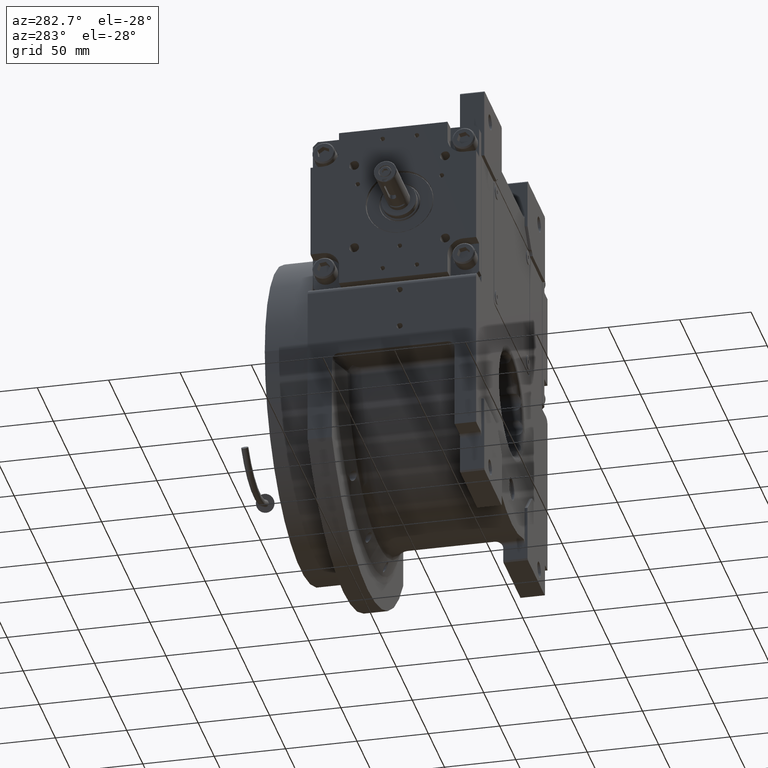
[diagram: clean part render]
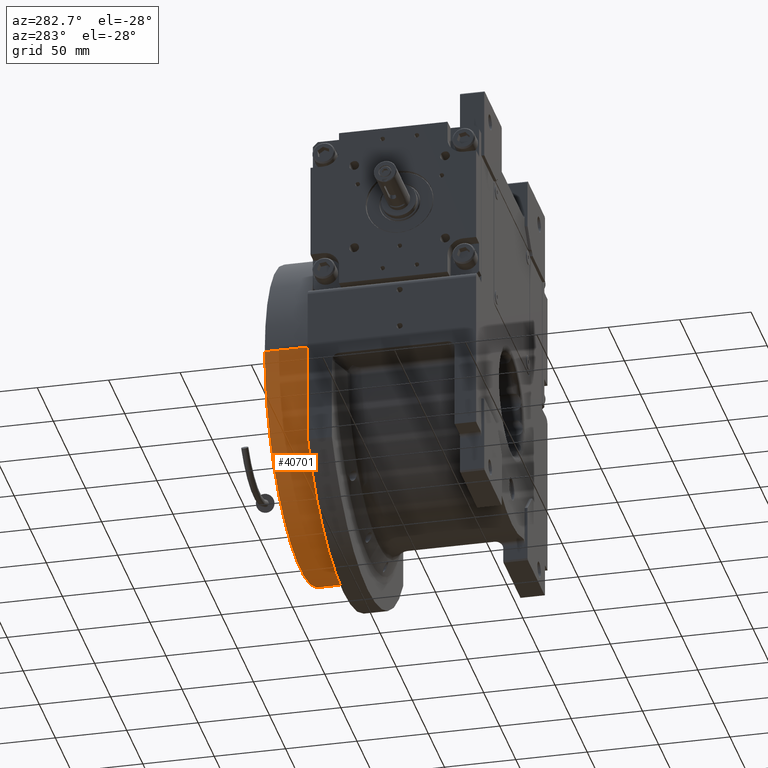
[diagram: same view with one face highlighted and labeled with its STEP entity id]
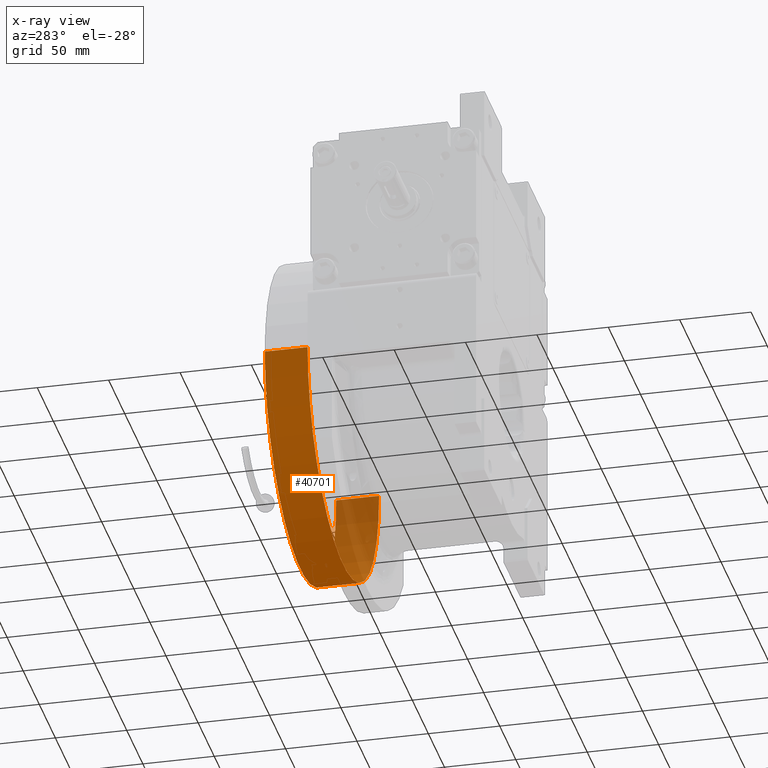
[diagram: x-ray of the same camera — body ghosted, the highlighted face saturated]
A machine part, auxiliary view. The second image highlights one B-rep face of the part: STEP entity #40701.
The next image is the same camera in x-ray: the body ghosted, the highlighted face saturated — about 23% of this face is hidden behind the body in this view.
In plain terms, the highlighted cylindrical surface (partial cylindrical patch) has radius 111 mm, axis along (0, -1, 0).
Its self-contained STEP definition (entity closure, byte-faithful):
#86 = EDGE_LOOP ( 'NONE', ( #34624, #9485, #25741, #30491 ) ) ;
#405 = CARTESIAN_POINT ( 'NONE',  ( 0.000000000000000000, 0.000000000000000000, 0.000000000000000000 ) ) ;
#932 = EDGE_CURVE ( 'NONE', #59314, #13287, #11685, .T. ) ;
#3292 = AXIS2_PLACEMENT_3D ( 'NONE', #405, #58411, #53814 ) ;
#7917 = CIRCLE ( 'NONE', #59509, 111.0000000000000000 ) ;
#9485 = ORIENTED_EDGE ( 'NONE', *, *, #38183, .F. ) ;
#9965 = VERTEX_POINT ( 'NONE', #17837 ) ;
#11685 = LINE ( 'NONE', #38039, #33365 ) ;
#12570 = DIRECTION ( 'NONE',  ( 1.000000000000000000, 0.000000000000000000, 0.000000000000000000 ) ) ;
#13287 = VERTEX_POINT ( 'NONE', #57015 ) ;
#17837 = CARTESIAN_POINT ( 'NONE',  ( 111.0000000000000000, 0.000000000000000000, 0.000000000000000000 ) ) ;
#20684 = EDGE_CURVE ( 'NONE', #9965, #59314, #33570, .T. ) ;
#21709 = FACE_OUTER_BOUND ( 'NONE', #86, .T. ) ;
#23774 = DIRECTION ( 'NONE',  ( 0.000000000000000000, 0.000000000000000000, 1.000000000000000000 ) ) ;
#25741 = ORIENTED_EDGE ( 'NONE', *, *, #26248, .F. ) ;
#26248 = EDGE_CURVE ( 'NONE', #9965, #61183, #38895, .T. ) ;
#26475 = DIRECTION ( 'NONE',  ( 0.000000000000000000, 0.000000000000000000, 1.000000000000000000 ) ) ;
#27914 = CARTESIAN_POINT ( 'NONE',  ( 111.0000000000000000, 0.000000000000000000, 30.00000000000000000 ) ) ;
#29064 = DIRECTION ( 'NONE',  ( 0.000000000000000000, 0.000000000000000000, -1.000000000000000000 ) ) ;
#29380 = CARTESIAN_POINT ( 'NONE',  ( 0.000000000000000000, 0.000000000000000000, 30.00000000000000000 ) ) ;
#30491 = ORIENTED_EDGE ( 'NONE', *, *, #20684, .T. ) ;
#33365 = VECTOR ( 'NONE', #26475, 1000.000000000000000 ) ;
#33522 = CARTESIAN_POINT ( 'NONE',  ( -111.0000000000000000, 4.531193156845210737E-15, 0.000000000000000000 ) ) ;
#33570 = CIRCLE ( 'NONE', #3292, 111.0000000000000000 ) ;
#34624 = ORIENTED_EDGE ( 'NONE', *, *, #932, .T. ) ;
#35340 = DIRECTION ( 'NONE',  ( 1.000000000000000000, 0.000000000000000000, 0.000000000000000000 ) ) ;
#38039 = CARTESIAN_POINT ( 'NONE',  ( -111.0000000000000000, 1.359357947053561722E-14, 0.000000000000000000 ) ) ;
#38183 = EDGE_CURVE ( 'NONE', #61183, #13287, #7917, .T. ) ;
#38208 = CARTESIAN_POINT ( 'NONE',  ( 111.0000000000000000, 0.000000000000000000, 0.000000000000000000 ) ) ;
#38895 = LINE ( 'NONE', #38208, #50837 ) ;
#39936 = CARTESIAN_POINT ( 'NONE',  ( 0.000000000000000000, 0.000000000000000000, 0.000000000000000000 ) ) ;
#40701 = ADVANCED_FACE ( 'NONE', ( #21709 ), #64566, .T. ) ;
#42903 = AXIS2_PLACEMENT_3D ( 'NONE', #39936, #29064, #12570 ) ;
#50837 = VECTOR ( 'NONE', #54019, 1000.000000000000000 ) ;
#53814 = DIRECTION ( 'NONE',  ( 1.000000000000000000, 0.000000000000000000, 0.000000000000000000 ) ) ;
#54019 = DIRECTION ( 'NONE',  ( 0.000000000000000000, 0.000000000000000000, 1.000000000000000000 ) ) ;
#57015 = CARTESIAN_POINT ( 'NONE',  ( -111.0000000000000000, 4.531193156845210737E-15, 30.00000000000000000 ) ) ;
#58411 = DIRECTION ( 'NONE',  ( 0.000000000000000000, 0.000000000000000000, 1.000000000000000000 ) ) ;
#59314 = VERTEX_POINT ( 'NONE', #33522 ) ;
#59509 = AXIS2_PLACEMENT_3D ( 'NONE', #29380, #23774, #35340 ) ;
#61183 = VERTEX_POINT ( 'NONE', #27914 ) ;
#64566 = CYLINDRICAL_SURFACE ( 'NONE', #42903, 111.0000000000000000 ) ;